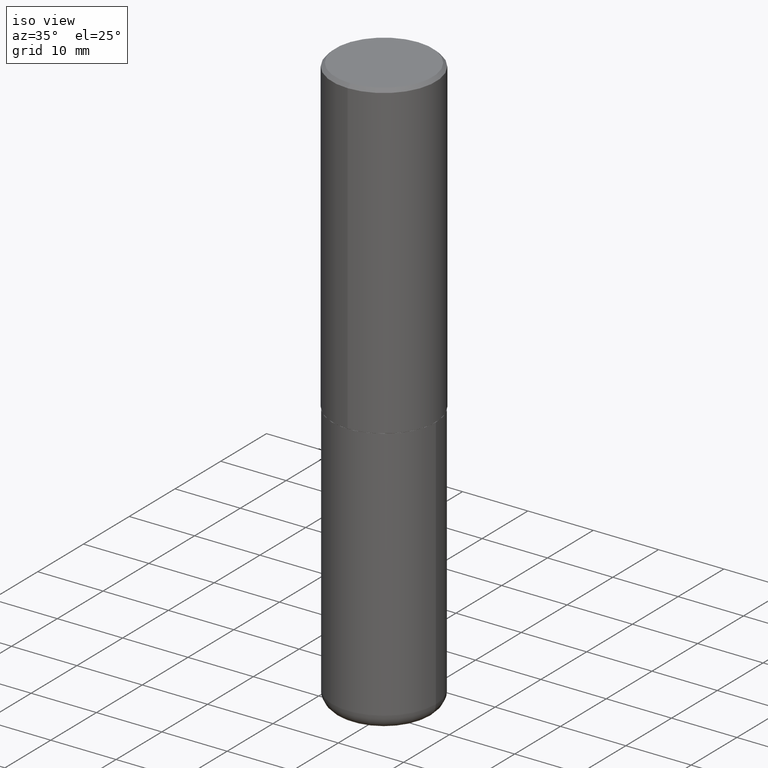
[diagram: clean part render]
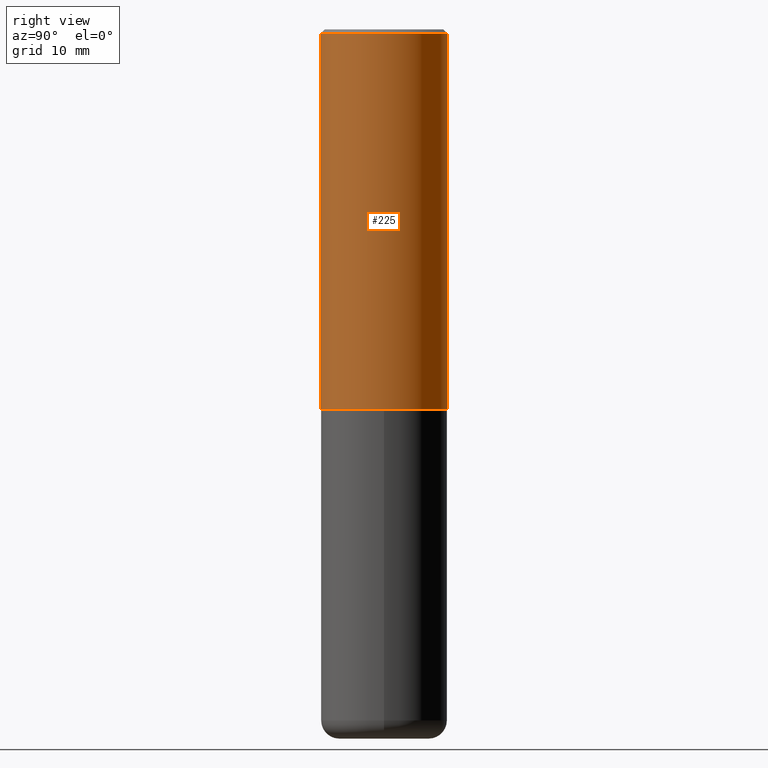
[diagram: tour spotlight — one face highlighted and labeled with its STEP entity id]
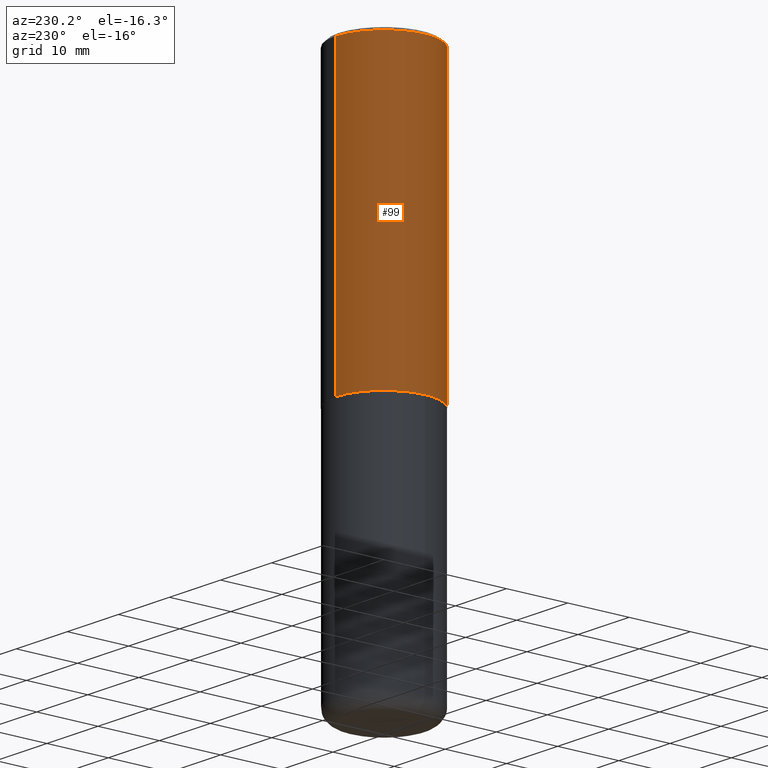
[diagram: tour spotlight — one face highlighted and labeled with its STEP entity id]
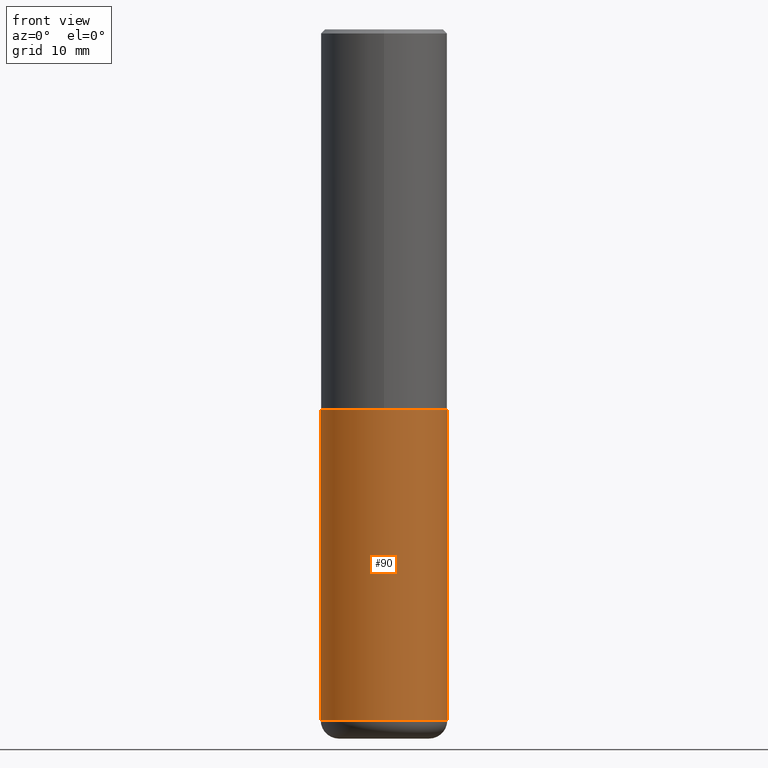
[diagram: tour spotlight — one face highlighted and labeled with its STEP entity id]
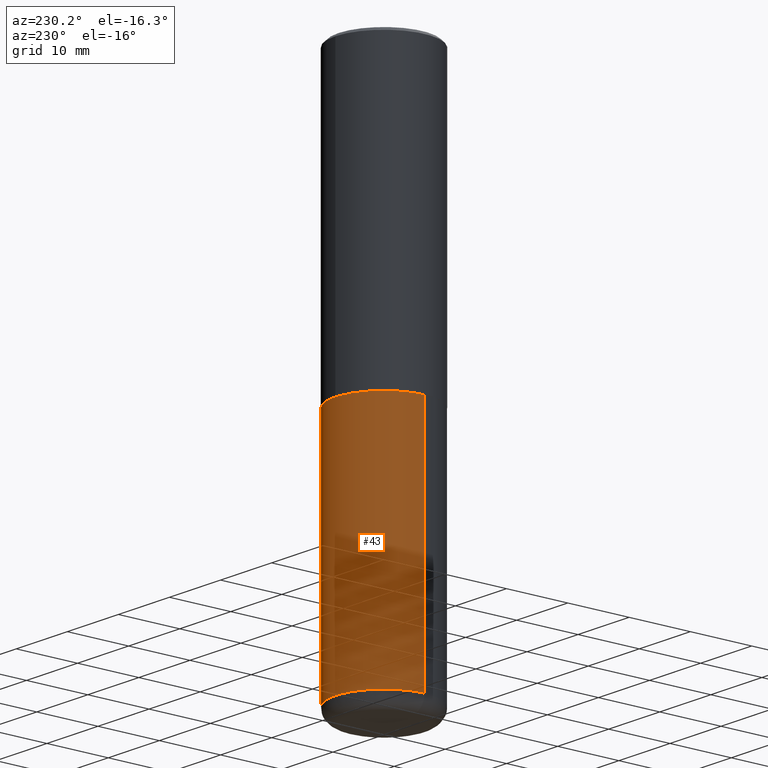
[diagram: tour spotlight — one face highlighted and labeled with its STEP entity id]
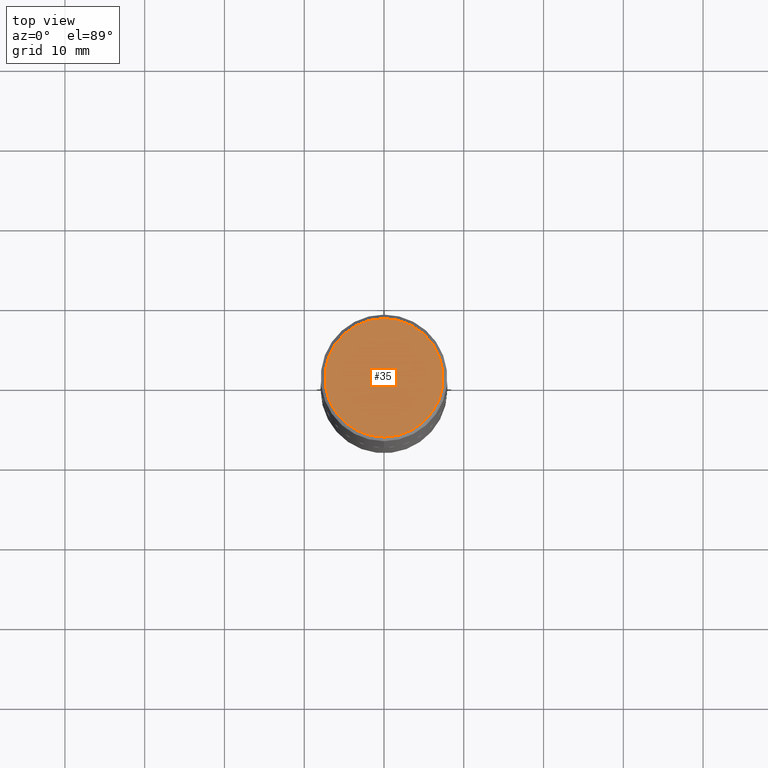
[diagram: tour spotlight — one face highlighted and labeled with its STEP entity id]
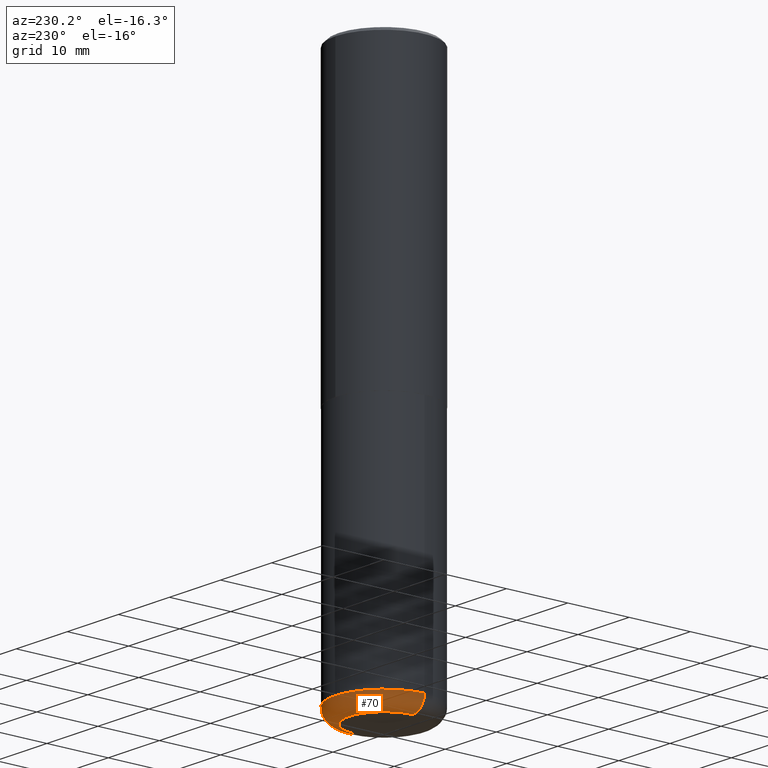
[diagram: tour spotlight — one face highlighted and labeled with its STEP entity id]
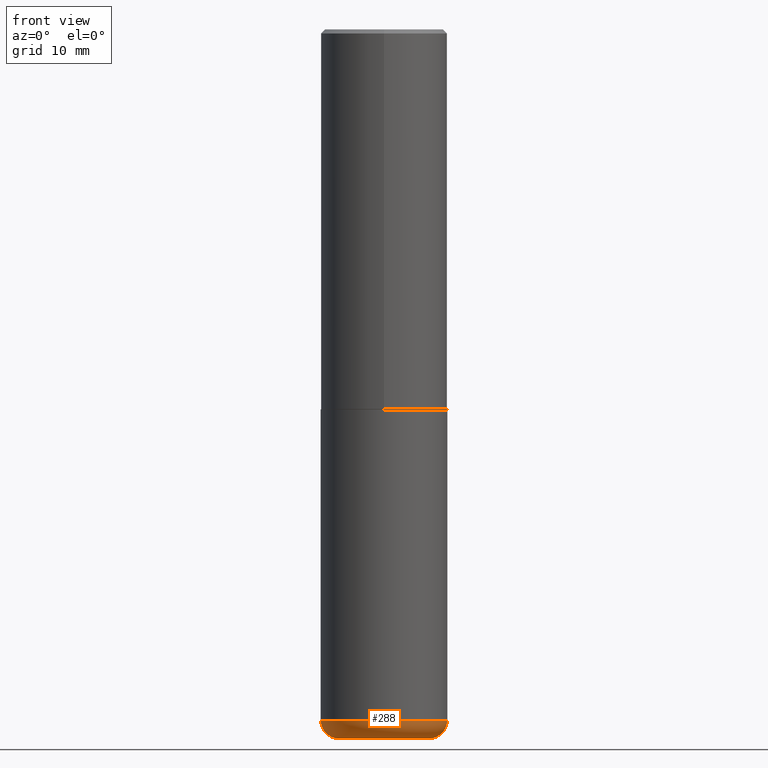
[diagram: tour spotlight — one face highlighted and labeled with its STEP entity id]
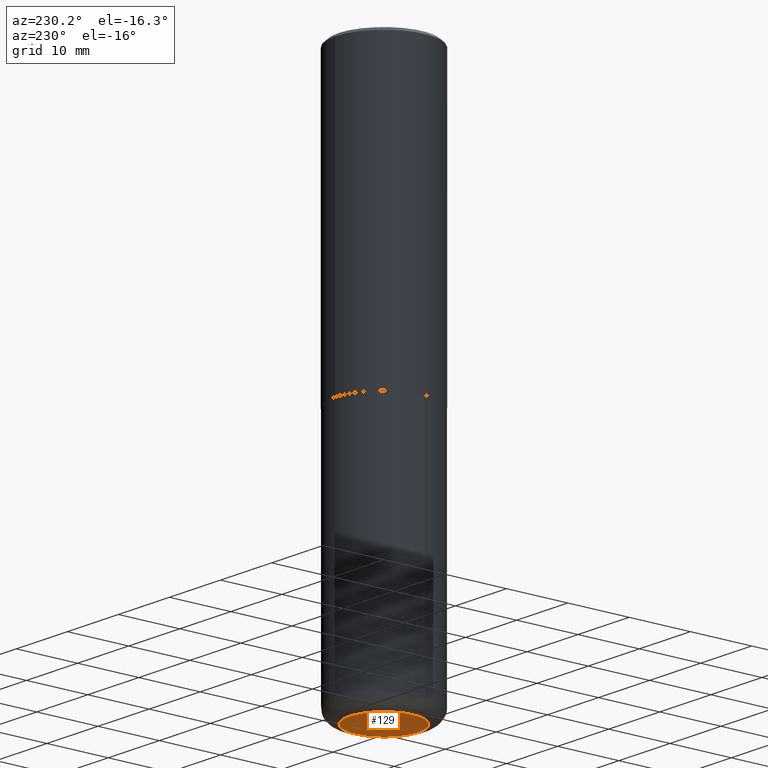
[diagram: tour spotlight — one face highlighted and labeled with its STEP entity id]
A machine part: a face-by-face anatomy tour. The part has 14 B-rep faces; the first image is the clean iso view, then the 8 largest visible faces are spotlighted one at a time (largest first), each with its STEP entity span.

Face 1 — right view, entity #225. In plain terms, the highlighted cylindrical surface (partial cylindrical patch) has radius 7.9375 mm, axis along (-0, 0, 1).
Definition (entity closure, byte-faithful):
#3 = VERTEX_POINT ( 'NONE', #355 ) ;
#10 = EDGE_CURVE ( 'NONE', #3, #155, #337, .T. ) ;
#17 = CARTESIAN_POINT ( 'NONE',  ( 4.582734173587975596E-29, -6.543142529923538471E-15, -1.873999999999999666 ) ) ;
#49 = LINE ( 'NONE', #167, #171 ) ;
#50 = LINE ( 'NONE', #177, #55 ) ;
#55 = VECTOR ( 'NONE', #343, 39.37007874015748143 ) ;
#61 = ORIENTED_EDGE ( 'NONE', *, *, #195, .T. ) ;
#84 = CARTESIAN_POINT ( 'NONE',  ( 2.220446049250337141E-15, 0.3124999999999936717, -1.874000000000000776 ) ) ;
#85 = VERTEX_POINT ( 'NONE', #110 ) ;
#94 = DIRECTION ( 'NONE',  ( -6.982962677686265133E-15, -1.000000000000000000, 3.496765431890256920E-15 ) ) ;
#98 = DIRECTION ( 'NONE',  ( -2.445429121445024938E-29, 3.491538169649700661E-15, 1.000000000000000000 ) ) ;
#110 = CARTESIAN_POINT ( 'NONE',  ( -2.182175836776913776E-15, -0.3125000000000067724, -1.873999999999998556 ) ) ;
#112 = CARTESIAN_POINT ( 'NONE',  ( 2.182175836776958741E-15, 0.3124999999999999445, -0.02000000000000116268 ) ) ;
#126 = CARTESIAN_POINT ( 'NONE',  ( 4.890858242890066482E-31, -6.983076339299424594E-17, -0.02000000000000006981 ) ) ;
#148 = CYLINDRICAL_SURFACE ( 'NONE', #166, 0.3125000000000001665 ) ;
#155 = VERTEX_POINT ( 'NONE', #112 ) ;
#160 = EDGE_LOOP ( 'NONE', ( #61, #252, #188, #410 ) ) ;
#166 = AXIS2_PLACEMENT_3D ( 'NONE', #213, #310, #371 ) ;
#167 = CARTESIAN_POINT ( 'NONE',  ( 2.220446049250313475E-15, 0.3125000000000001665, -1.091105678015531925E-15 ) ) ;
#171 = VECTOR ( 'NONE', #175, 39.37007874015748143 ) ;
#173 = EDGE_CURVE ( 'NONE', #255, #155, #49, .T. ) ;
#175 = DIRECTION ( 'NONE',  ( -2.445429121445024938E-29, 3.491538169649700267E-15, 1.000000000000000000 ) ) ;
#177 = CARTESIAN_POINT ( 'NONE',  ( -2.182175836776959136E-15, -0.3125000000000001665, 1.091105678015531925E-15 ) ) ;
#188 = ORIENTED_EDGE ( 'NONE', *, *, #10, .F. ) ;
#195 = EDGE_CURVE ( 'NONE', #85, #255, #390, .T. ) ;
#213 = CARTESIAN_POINT ( 'NONE',  ( 0.000000000000000000, 0.000000000000000000, 0.000000000000000000 ) ) ;
#225 = ADVANCED_FACE ( 'NONE', ( #303 ), #148, .T. ) ;
#231 = DIRECTION ( 'NONE',  ( -2.445429121445024938E-29, 3.491538169649700661E-15, 1.000000000000000000 ) ) ;
#252 = ORIENTED_EDGE ( 'NONE', *, *, #173, .T. ) ;
#255 = VERTEX_POINT ( 'NONE', #84 ) ;
#302 = EDGE_CURVE ( 'NONE', #85, #3, #50, .T. ) ;
#303 = FACE_OUTER_BOUND ( 'NONE', #160, .T. ) ;
#310 = DIRECTION ( 'NONE',  ( -2.445429121445024938E-29, 3.491538169649700661E-15, 1.000000000000000000 ) ) ;
#337 = CIRCLE ( 'NONE', #400, 0.3125000000000000000 ) ;
#343 = DIRECTION ( 'NONE',  ( -2.445429121445024938E-29, 3.491538169649700267E-15, 1.000000000000000000 ) ) ;
#355 = CARTESIAN_POINT ( 'NONE',  ( -2.143905624303602824E-15, -0.3125000000000000555, -0.01999999999999897693 ) ) ;
#362 = DIRECTION ( 'NONE',  ( -6.982962677686265922E-15, -1.000000000000000000, 3.496765431890254553E-15 ) ) ;
#371 = DIRECTION ( 'NONE',  ( -6.982962677686265133E-15, -1.000000000000000000, 3.491538169649700267E-15 ) ) ;
#390 = CIRCLE ( 'NONE', #408, 0.3125000000000002220 ) ;
#400 = AXIS2_PLACEMENT_3D ( 'NONE', #126, #98, #94 ) ;
#408 = AXIS2_PLACEMENT_3D ( 'NONE', #17, #231, #362 ) ;
#410 = ORIENTED_EDGE ( 'NONE', *, *, #302, .F. ) ;

Face 2 — auxiliary view, entity #99. In plain terms, the highlighted cylindrical surface (partial cylindrical patch) has radius 7.9375 mm, axis along (-0, 0, 1).
Definition (entity closure, byte-faithful):
#3 = VERTEX_POINT ( 'NONE', #355 ) ;
#49 = LINE ( 'NONE', #167, #171 ) ;
#50 = LINE ( 'NONE', #177, #55 ) ;
#54 = CARTESIAN_POINT ( 'NONE',  ( 4.582734173587975596E-29, -6.543142529923538471E-15, -1.873999999999999666 ) ) ;
#55 = VECTOR ( 'NONE', #343, 39.37007874015748143 ) ;
#74 = DIRECTION ( 'NONE',  ( -6.982962677686265133E-15, -1.000000000000000000, 3.491538169649700267E-15 ) ) ;
#84 = CARTESIAN_POINT ( 'NONE',  ( 2.220446049250337141E-15, 0.3124999999999936717, -1.874000000000000776 ) ) ;
#85 = VERTEX_POINT ( 'NONE', #110 ) ;
#99 = ADVANCED_FACE ( 'NONE', ( #297 ), #403, .T. ) ;
#101 = ORIENTED_EDGE ( 'NONE', *, *, #369, .F. ) ;
#110 = CARTESIAN_POINT ( 'NONE',  ( -2.182175836776913776E-15, -0.3125000000000067724, -1.873999999999998556 ) ) ;
#112 = CARTESIAN_POINT ( 'NONE',  ( 2.182175836776958741E-15, 0.3124999999999999445, -0.02000000000000116268 ) ) ;
#152 = DIRECTION ( 'NONE',  ( -2.445429121445024938E-29, 3.491538169649700661E-15, 1.000000000000000000 ) ) ;
#155 = VERTEX_POINT ( 'NONE', #112 ) ;
#167 = CARTESIAN_POINT ( 'NONE',  ( 2.220446049250313475E-15, 0.3125000000000001665, -1.091105678015531925E-15 ) ) ;
#171 = VECTOR ( 'NONE', #175, 39.37007874015748143 ) ;
#173 = EDGE_CURVE ( 'NONE', #255, #155, #49, .T. ) ;
#175 = DIRECTION ( 'NONE',  ( -2.445429121445024938E-29, 3.491538169649700267E-15, 1.000000000000000000 ) ) ;
#177 = CARTESIAN_POINT ( 'NONE',  ( -2.182175836776959136E-15, -0.3125000000000001665, 1.091105678015531925E-15 ) ) ;
#208 = AXIS2_PLACEMENT_3D ( 'NONE', #406, #216, #215 ) ;
#215 = DIRECTION ( 'NONE',  ( -6.982962677686265133E-15, -1.000000000000000000, 3.496765431890256920E-15 ) ) ;
#216 = DIRECTION ( 'NONE',  ( -2.445429121445024938E-29, 3.491538169649700661E-15, 1.000000000000000000 ) ) ;
#220 = CIRCLE ( 'NONE', #208, 0.3125000000000000000 ) ;
#222 = ORIENTED_EDGE ( 'NONE', *, *, #173, .F. ) ;
#228 = ORIENTED_EDGE ( 'NONE', *, *, #320, .T. ) ;
#255 = VERTEX_POINT ( 'NONE', #84 ) ;
#286 = CIRCLE ( 'NONE', #340, 0.3125000000000002220 ) ;
#297 = FACE_OUTER_BOUND ( 'NONE', #308, .T. ) ;
#302 = EDGE_CURVE ( 'NONE', #85, #3, #50, .T. ) ;
#308 = EDGE_LOOP ( 'NONE', ( #222, #228, #416, #101 ) ) ;
#317 = AXIS2_PLACEMENT_3D ( 'NONE', #399, #368, #74 ) ;
#320 = EDGE_CURVE ( 'NONE', #255, #85, #286, .T. ) ;
#340 = AXIS2_PLACEMENT_3D ( 'NONE', #54, #152, #379 ) ;
#343 = DIRECTION ( 'NONE',  ( -2.445429121445024938E-29, 3.491538169649700267E-15, 1.000000000000000000 ) ) ;
#355 = CARTESIAN_POINT ( 'NONE',  ( -2.143905624303602824E-15, -0.3125000000000000555, -0.01999999999999897693 ) ) ;
#368 = DIRECTION ( 'NONE',  ( -2.445429121445024938E-29, 3.491538169649700661E-15, 1.000000000000000000 ) ) ;
#369 = EDGE_CURVE ( 'NONE', #155, #3, #220, .T. ) ;
#379 = DIRECTION ( 'NONE',  ( -6.982962677686265922E-15, -1.000000000000000000, 3.496765431890254553E-15 ) ) ;
#399 = CARTESIAN_POINT ( 'NONE',  ( 0.000000000000000000, 0.000000000000000000, 0.000000000000000000 ) ) ;
#403 = CYLINDRICAL_SURFACE ( 'NONE', #317, 0.3125000000000001665 ) ;
#406 = CARTESIAN_POINT ( 'NONE',  ( 4.890858242890066482E-31, -6.983076339299424594E-17, -0.02000000000000006981 ) ) ;
#416 = ORIENTED_EDGE ( 'NONE', *, *, #302, .T. ) ;

Face 3 — front view, entity #90. In plain terms, the highlighted cylindrical surface (partial cylindrical patch) has radius 7.9375 mm, axis along (-0, 0, 1).
Definition (entity closure, byte-faithful):
#1 = EDGE_LOOP ( 'NONE', ( #190, #268, #158, #217 ) ) ;
#8 = LINE ( 'NONE', #206, #48 ) ;
#9 = DIRECTION ( 'NONE',  ( -2.445468806185136877E-29, 3.491481338843145188E-15, 1.000000000000000000 ) ) ;
#33 = VERTEX_POINT ( 'NONE', #165 ) ;
#44 = FACE_OUTER_BOUND ( 'NONE', #1, .T. ) ;
#48 = VECTOR ( 'NONE', #9, 39.37007874015748143 ) ;
#59 = VERTEX_POINT ( 'NONE', #367 ) ;
#67 = AXIS2_PLACEMENT_3D ( 'NONE', #69, #95, #226 ) ;
#69 = CARTESIAN_POINT ( 'NONE',  ( 4.585254011597130558E-29, -6.546527510330897918E-15, -1.874999999999999778 ) ) ;
#75 = DIRECTION ( 'NONE',  ( -2.445468806185136597E-29, 3.491481338843145583E-15, 1.000000000000000000 ) ) ;
#77 = EDGE_CURVE ( 'NONE', #185, #33, #8, .T. ) ;
#90 = ADVANCED_FACE ( 'NONE', ( #44 ), #260, .T. ) ;
#95 = DIRECTION ( 'NONE',  ( -2.445468806185136597E-29, 3.491481338843145583E-15, 1.000000000000000000 ) ) ;
#102 = AXIS2_PLACEMENT_3D ( 'NONE', #133, #75, #293 ) ;
#128 = VERTEX_POINT ( 'NONE', #333 ) ;
#130 = CIRCLE ( 'NONE', #193, 0.3125000000000000000 ) ;
#131 = CIRCLE ( 'NONE', #67, 0.3125000000000000000 ) ;
#133 = CARTESIAN_POINT ( 'NONE',  ( 0.000000000000000000, 0.000000000000000000, 0.000000000000000000 ) ) ;
#138 = CARTESIAN_POINT ( 'NONE',  ( 8.339048629091315302E-29, -1.190595136545512608E-14, -3.410000000000000142 ) ) ;
#151 = EDGE_CURVE ( 'NONE', #128, #185, #130, .T. ) ;
#158 = ORIENTED_EDGE ( 'NONE', *, *, #77, .T. ) ;
#165 = CARTESIAN_POINT ( 'NONE',  ( 0.3125000000000000000, -8.728703347107855476E-15, -1.874999999999999778 ) ) ;
#185 = VERTEX_POINT ( 'NONE', #397 ) ;
#190 = ORIENTED_EDGE ( 'NONE', *, *, #375, .F. ) ;
#193 = AXIS2_PLACEMENT_3D ( 'NONE', #138, #263, #402 ) ;
#206 = CARTESIAN_POINT ( 'NONE',  ( 0.3125000000000000000, -2.182175836776958347E-15, 1.523805242436230075E-29 ) ) ;
#217 = ORIENTED_EDGE ( 'NONE', *, *, #396, .F. ) ;
#226 = DIRECTION ( 'NONE',  ( 1.000000000000000000, -6.982962677686265133E-15, 0.000000000000000000 ) ) ;
#260 = CYLINDRICAL_SURFACE ( 'NONE', #102, 0.3125000000000000000 ) ;
#263 = DIRECTION ( 'NONE',  ( -2.445468806185136597E-29, 3.491481338843145583E-15, 1.000000000000000000 ) ) ;
#268 = ORIENTED_EDGE ( 'NONE', *, *, #151, .T. ) ;
#273 = CARTESIAN_POINT ( 'NONE',  ( -0.3125000000000000000, 2.220446049250313081E-15, -1.537167215704658232E-29 ) ) ;
#293 = DIRECTION ( 'NONE',  ( 1.000000000000000000, -6.982962677686266711E-15, 4.876176775795936353E-29 ) ) ;
#333 = CARTESIAN_POINT ( 'NONE',  ( -0.3125000000000001665, -9.685505316204812997E-15, -3.410000000000000142 ) ) ;
#342 = VECTOR ( 'NONE', #346, 39.37007874015748143 ) ;
#344 = LINE ( 'NONE', #273, #342 ) ;
#346 = DIRECTION ( 'NONE',  ( -2.445468806185136877E-29, 3.491481338843145188E-15, 1.000000000000000000 ) ) ;
#367 = CARTESIAN_POINT ( 'NONE',  ( -0.3125000000000000000, -7.005793388642699312E-15, -1.874999999999999778 ) ) ;
#375 = EDGE_CURVE ( 'NONE', #128, #59, #344, .T. ) ;
#396 = EDGE_CURVE ( 'NONE', #59, #33, #131, .T. ) ;
#397 = CARTESIAN_POINT ( 'NONE',  ( 0.3125000000000001665, -1.408812720223208758E-14, -3.410000000000000142 ) ) ;
#402 = DIRECTION ( 'NONE',  ( 1.000000000000000000, -6.982962677686269077E-15, 0.000000000000000000 ) ) ;

Face 4 — auxiliary view, entity #43. In plain terms, the highlighted cylindrical surface (partial cylindrical patch) has radius 7.9375 mm, axis along (-0, 0, 1).
Definition (entity closure, byte-faithful):
#8 = LINE ( 'NONE', #206, #48 ) ;
#9 = DIRECTION ( 'NONE',  ( -2.445468806185136877E-29, 3.491481338843145188E-15, 1.000000000000000000 ) ) ;
#33 = VERTEX_POINT ( 'NONE', #165 ) ;
#43 = ADVANCED_FACE ( 'NONE', ( #141 ), #107, .T. ) ;
#48 = VECTOR ( 'NONE', #9, 39.37007874015748143 ) ;
#52 = DIRECTION ( 'NONE',  ( -2.445468806185136597E-29, 3.491481338843145583E-15, 1.000000000000000000 ) ) ;
#59 = VERTEX_POINT ( 'NONE', #367 ) ;
#77 = EDGE_CURVE ( 'NONE', #185, #33, #8, .T. ) ;
#78 = CARTESIAN_POINT ( 'NONE',  ( 4.585254011597130558E-29, -6.546527510330897918E-15, -1.874999999999999778 ) ) ;
#79 = AXIS2_PLACEMENT_3D ( 'NONE', #181, #52, #409 ) ;
#82 = AXIS2_PLACEMENT_3D ( 'NONE', #330, #264, #137 ) ;
#103 = AXIS2_PLACEMENT_3D ( 'NONE', #78, #363, #370 ) ;
#107 = CYLINDRICAL_SURFACE ( 'NONE', #82, 0.3125000000000000000 ) ;
#124 = ORIENTED_EDGE ( 'NONE', *, *, #140, .F. ) ;
#128 = VERTEX_POINT ( 'NONE', #333 ) ;
#137 = DIRECTION ( 'NONE',  ( 1.000000000000000000, -6.982962677686266711E-15, 4.876176775795936353E-29 ) ) ;
#140 = EDGE_CURVE ( 'NONE', #33, #59, #292, .T. ) ;
#141 = FACE_OUTER_BOUND ( 'NONE', #150, .T. ) ;
#150 = EDGE_LOOP ( 'NONE', ( #316, #284, #124, #182 ) ) ;
#165 = CARTESIAN_POINT ( 'NONE',  ( 0.3125000000000000000, -8.728703347107855476E-15, -1.874999999999999778 ) ) ;
#181 = CARTESIAN_POINT ( 'NONE',  ( 8.339048629091315302E-29, -1.190595136545512608E-14, -3.410000000000000142 ) ) ;
#182 = ORIENTED_EDGE ( 'NONE', *, *, #77, .F. ) ;
#185 = VERTEX_POINT ( 'NONE', #397 ) ;
#206 = CARTESIAN_POINT ( 'NONE',  ( 0.3125000000000000000, -2.182175836776958347E-15, 1.523805242436230075E-29 ) ) ;
#209 = EDGE_CURVE ( 'NONE', #185, #128, #271, .T. ) ;
#264 = DIRECTION ( 'NONE',  ( -2.445468806185136597E-29, 3.491481338843145583E-15, 1.000000000000000000 ) ) ;
#271 = CIRCLE ( 'NONE', #79, 0.3125000000000000000 ) ;
#273 = CARTESIAN_POINT ( 'NONE',  ( -0.3125000000000000000, 2.220446049250313081E-15, -1.537167215704658232E-29 ) ) ;
#284 = ORIENTED_EDGE ( 'NONE', *, *, #375, .T. ) ;
#292 = CIRCLE ( 'NONE', #103, 0.3125000000000000000 ) ;
#316 = ORIENTED_EDGE ( 'NONE', *, *, #209, .T. ) ;
#330 = CARTESIAN_POINT ( 'NONE',  ( 0.000000000000000000, 0.000000000000000000, 0.000000000000000000 ) ) ;
#333 = CARTESIAN_POINT ( 'NONE',  ( -0.3125000000000001665, -9.685505316204812997E-15, -3.410000000000000142 ) ) ;
#342 = VECTOR ( 'NONE', #346, 39.37007874015748143 ) ;
#344 = LINE ( 'NONE', #273, #342 ) ;
#346 = DIRECTION ( 'NONE',  ( -2.445468806185136877E-29, 3.491481338843145188E-15, 1.000000000000000000 ) ) ;
#363 = DIRECTION ( 'NONE',  ( -2.445468806185136597E-29, 3.491481338843145583E-15, 1.000000000000000000 ) ) ;
#367 = CARTESIAN_POINT ( 'NONE',  ( -0.3125000000000000000, -7.005793388642699312E-15, -1.874999999999999778 ) ) ;
#370 = DIRECTION ( 'NONE',  ( 1.000000000000000000, -6.982962677686265133E-15, 0.000000000000000000 ) ) ;
#375 = EDGE_CURVE ( 'NONE', #128, #59, #344, .T. ) ;
#397 = CARTESIAN_POINT ( 'NONE',  ( 0.3125000000000001665, -1.408812720223208758E-14, -3.410000000000000142 ) ) ;
#409 = DIRECTION ( 'NONE',  ( 1.000000000000000000, -6.982962677686269077E-15, 0.000000000000000000 ) ) ;

Face 5 — top view, entity #35. In plain terms, the highlighted planar face has unit normal (0, -0, -1).
Definition (entity closure, byte-faithful):
#16 = CIRCLE ( 'NONE', #63, 0.2924999999999998712 ) ;
#19 = DIRECTION ( 'NONE',  ( -2.445429121445024938E-29, 3.491538169649700661E-15, 1.000000000000000000 ) ) ;
#27 = EDGE_LOOP ( 'NONE', ( #275, #388 ) ) ;
#31 = CARTESIAN_POINT ( 'NONE',  ( 2.112346210000095443E-15, 0.2924999999999998712, -8.761288669482055095E-16 ) ) ;
#32 = PLANE ( 'NONE',  #417 ) ;
#35 = ADVANCED_FACE ( 'NONE', ( #289 ), #32, .F. ) ;
#47 = CIRCLE ( 'NONE', #335, 0.2924999999999998712 ) ;
#63 = AXIS2_PLACEMENT_3D ( 'NONE', #307, #244, #147 ) ;
#134 = DIRECTION ( 'NONE',  ( 6.982962677686265922E-15, 1.000000000000000000, -3.491538169649700267E-15 ) ) ;
#147 = DIRECTION ( 'NONE',  ( -6.982962677686265133E-15, -1.000000000000000000, 3.491538169649699873E-15 ) ) ;
#239 = EDGE_CURVE ( 'NONE', #393, #304, #47, .T. ) ;
#244 = DIRECTION ( 'NONE',  ( -2.445429121445024938E-29, 3.491538169649700661E-15, 1.000000000000000000 ) ) ;
#267 = CARTESIAN_POINT ( 'NONE',  ( -3.549443718454578199E-45, 5.067829656287230541E-31, 1.451460476743313561E-16 ) ) ;
#275 = ORIENTED_EDGE ( 'NONE', *, *, #239, .T. ) ;
#280 = CARTESIAN_POINT ( 'NONE',  ( 2.042516583223231751E-15, 0.2924999999999998712, -9.487018907853712492E-16 ) ) ;
#289 = FACE_OUTER_BOUND ( 'NONE', #27, .T. ) ;
#301 = DIRECTION ( 'NONE',  ( 2.445429121445024938E-29, -3.491538169649700267E-15, -1.000000000000000000 ) ) ;
#304 = VERTEX_POINT ( 'NONE', #372 ) ;
#307 = CARTESIAN_POINT ( 'NONE',  ( -3.549443718454578199E-45, 5.067829656287230541E-31, 1.451460476743313561E-16 ) ) ;
#311 = EDGE_CURVE ( 'NONE', #304, #393, #16, .T. ) ;
#335 = AXIS2_PLACEMENT_3D ( 'NONE', #267, #19, #404 ) ;
#372 = CARTESIAN_POINT ( 'NONE',  ( -2.075300644325887099E-15, -0.2924999999999998712, 1.166420962296868074E-15 ) ) ;
#388 = ORIENTED_EDGE ( 'NONE', *, *, #311, .T. ) ;
#393 = VERTEX_POINT ( 'NONE', #31 ) ;
#404 = DIRECTION ( 'NONE',  ( -6.982962677686265133E-15, -1.000000000000000000, 3.491538169649699873E-15 ) ) ;
#417 = AXIS2_PLACEMENT_3D ( 'NONE', #280, #301, #134 ) ;

Face 6 — auxiliary view, entity #70. In plain terms, the highlighted toroidal blend (fillet) surface has major radius 5.6515 mm and minor (blend) radius 2.286 mm.
Definition (entity closure, byte-faithful):
#14 = DIRECTION ( 'NONE',  ( -6.982962677686266711E-15, -1.000000000000000000, 3.491481338843145583E-15 ) ) ;
#20 = AXIS2_PLACEMENT_3D ( 'NONE', #259, #14, #207 ) ;
#29 = ORIENTED_EDGE ( 'NONE', *, *, #146, .F. ) ;
#41 = DIRECTION ( 'NONE',  ( 1.000000000000000000, -6.982962677686264344E-15, 4.883557194083112340E-29 ) ) ;
#52 = DIRECTION ( 'NONE',  ( -2.445468806185136597E-29, 3.491481338843145583E-15, 1.000000000000000000 ) ) ;
#70 = ADVANCED_FACE ( 'NONE', ( #76 ), #359, .T. ) ;
#76 = FACE_OUTER_BOUND ( 'NONE', #373, .T. ) ;
#79 = AXIS2_PLACEMENT_3D ( 'NONE', #181, #52, #409 ) ;
#109 = DIRECTION ( 'NONE',  ( -2.445468806185136597E-29, 3.491481338843145583E-15, 1.000000000000000000 ) ) ;
#121 = DIRECTION ( 'NONE',  ( 7.105427357601001859E-15, 1.000000000000000000, -3.491481338843145583E-15 ) ) ;
#128 = VERTEX_POINT ( 'NONE', #333 ) ;
#136 = AXIS2_PLACEMENT_3D ( 'NONE', #405, #339, #376 ) ;
#146 = EDGE_CURVE ( 'NONE', #324, #185, #338, .T. ) ;
#163 = ORIENTED_EDGE ( 'NONE', *, *, #236, .T. ) ;
#174 = AXIS2_PLACEMENT_3D ( 'NONE', #294, #109, #41 ) ;
#181 = CARTESIAN_POINT ( 'NONE',  ( 8.339048629091315302E-29, -1.190595136545512608E-14, -3.410000000000000142 ) ) ;
#185 = VERTEX_POINT ( 'NONE', #397 ) ;
#207 = DIRECTION ( 'NONE',  ( 1.000000000000000000, -6.982962677686273021E-15, 0.000000000000000000 ) ) ;
#209 = EDGE_CURVE ( 'NONE', #185, #128, #271, .T. ) ;
#230 = EDGE_CURVE ( 'NONE', #395, #128, #347, .T. ) ;
#236 = EDGE_CURVE ( 'NONE', #324, #395, #274, .T. ) ;
#247 = CARTESIAN_POINT ( 'NONE',  ( -0.2225000000000000033, -1.032499377838890215E-14, -3.410000000000000142 ) ) ;
#259 = CARTESIAN_POINT ( 'NONE',  ( 0.2225000000000000033, -1.345966056124032105E-14, -3.410000000000000142 ) ) ;
#271 = CIRCLE ( 'NONE', #79, 0.3125000000000000000 ) ;
#274 = CIRCLE ( 'NONE', #136, 0.2225000000000000033 ) ;
#290 = AXIS2_PLACEMENT_3D ( 'NONE', #247, #121, #341 ) ;
#294 = CARTESIAN_POINT ( 'NONE',  ( 8.339048629091315302E-29, -1.190595136545512608E-14, -3.410000000000000142 ) ) ;
#313 = ORIENTED_EDGE ( 'NONE', *, *, #230, .T. ) ;
#324 = VERTEX_POINT ( 'NONE', #374 ) ;
#333 = CARTESIAN_POINT ( 'NONE',  ( -0.3125000000000001665, -9.685505316204812997E-15, -3.410000000000000142 ) ) ;
#338 = CIRCLE ( 'NONE', #20, 0.09000000000000020484 ) ;
#339 = DIRECTION ( 'NONE',  ( -2.445468806185136597E-29, 3.491481338843145583E-15, 1.000000000000000000 ) ) ;
#341 = DIRECTION ( 'NONE',  ( -1.000000000000000000, 7.105427357600996337E-15, 0.000000000000000000 ) ) ;
#347 = CIRCLE ( 'NONE', #290, 0.09000000000000020484 ) ;
#352 = CARTESIAN_POINT ( 'NONE',  ( -0.2225000000000000033, -1.016236620754479763E-14, -3.500000000000000444 ) ) ;
#357 = ORIENTED_EDGE ( 'NONE', *, *, #209, .F. ) ;
#359 = TOROIDAL_SURFACE ( 'NONE', #174, 0.2225000000000000033, 0.09000000000000020484 ) ;
#373 = EDGE_LOOP ( 'NONE', ( #163, #313, #357, #29 ) ) ;
#374 = CARTESIAN_POINT ( 'NONE',  ( 0.2225000000000000033, -1.377389388173620589E-14, -3.500000000000000444 ) ) ;
#376 = DIRECTION ( 'NONE',  ( 1.000000000000000000, -6.982962677686269077E-15, 0.000000000000000000 ) ) ;
#395 = VERTEX_POINT ( 'NONE', #352 ) ;
#397 = CARTESIAN_POINT ( 'NONE',  ( 0.3125000000000001665, -1.408812720223208758E-14, -3.410000000000000142 ) ) ;
#405 = CARTESIAN_POINT ( 'NONE',  ( 8.559140821647978089E-29, -1.222018468595101092E-14, -3.500000000000000444 ) ) ;
#409 = DIRECTION ( 'NONE',  ( 1.000000000000000000, -6.982962677686269077E-15, 0.000000000000000000 ) ) ;

Face 7 — front view, entity #288. In plain terms, the highlighted toroidal blend (fillet) surface has major radius 5.6515 mm and minor (blend) radius 2.286 mm.
Definition (entity closure, byte-faithful):
#13 = CIRCLE ( 'NONE', #248, 0.2225000000000000033 ) ;
#14 = DIRECTION ( 'NONE',  ( -6.982962677686266711E-15, -1.000000000000000000, 3.491481338843145583E-15 ) ) ;
#20 = AXIS2_PLACEMENT_3D ( 'NONE', #259, #14, #207 ) ;
#22 = FACE_OUTER_BOUND ( 'NONE', #68, .T. ) ;
#42 = DIRECTION ( 'NONE',  ( -2.445468806185136597E-29, 3.491481338843145583E-15, 1.000000000000000000 ) ) ;
#51 = EDGE_CURVE ( 'NONE', #395, #324, #13, .T. ) ;
#53 = TOROIDAL_SURFACE ( 'NONE', #318, 0.2225000000000000033, 0.09000000000000020484 ) ;
#68 = EDGE_LOOP ( 'NONE', ( #116, #384, #144, #178 ) ) ;
#115 = CARTESIAN_POINT ( 'NONE',  ( 8.339048629091315302E-29, -1.190595136545512608E-14, -3.410000000000000142 ) ) ;
#116 = ORIENTED_EDGE ( 'NONE', *, *, #230, .F. ) ;
#117 = DIRECTION ( 'NONE',  ( 1.000000000000000000, -6.982962677686264344E-15, 4.883557194083112340E-29 ) ) ;
#121 = DIRECTION ( 'NONE',  ( 7.105427357601001859E-15, 1.000000000000000000, -3.491481338843145583E-15 ) ) ;
#128 = VERTEX_POINT ( 'NONE', #333 ) ;
#130 = CIRCLE ( 'NONE', #193, 0.3125000000000000000 ) ;
#138 = CARTESIAN_POINT ( 'NONE',  ( 8.339048629091315302E-29, -1.190595136545512608E-14, -3.410000000000000142 ) ) ;
#144 = ORIENTED_EDGE ( 'NONE', *, *, #146, .T. ) ;
#146 = EDGE_CURVE ( 'NONE', #324, #185, #338, .T. ) ;
#151 = EDGE_CURVE ( 'NONE', #128, #185, #130, .T. ) ;
#178 = ORIENTED_EDGE ( 'NONE', *, *, #151, .F. ) ;
#185 = VERTEX_POINT ( 'NONE', #397 ) ;
#193 = AXIS2_PLACEMENT_3D ( 'NONE', #138, #263, #402 ) ;
#205 = CARTESIAN_POINT ( 'NONE',  ( 8.559140821647978089E-29, -1.222018468595101092E-14, -3.500000000000000444 ) ) ;
#207 = DIRECTION ( 'NONE',  ( 1.000000000000000000, -6.982962677686273021E-15, 0.000000000000000000 ) ) ;
#230 = EDGE_CURVE ( 'NONE', #395, #128, #347, .T. ) ;
#247 = CARTESIAN_POINT ( 'NONE',  ( -0.2225000000000000033, -1.032499377838890215E-14, -3.410000000000000142 ) ) ;
#248 = AXIS2_PLACEMENT_3D ( 'NONE', #205, #42, #329 ) ;
#259 = CARTESIAN_POINT ( 'NONE',  ( 0.2225000000000000033, -1.345966056124032105E-14, -3.410000000000000142 ) ) ;
#263 = DIRECTION ( 'NONE',  ( -2.445468806185136597E-29, 3.491481338843145583E-15, 1.000000000000000000 ) ) ;
#288 = ADVANCED_FACE ( 'NONE', ( #22 ), #53, .T. ) ;
#290 = AXIS2_PLACEMENT_3D ( 'NONE', #247, #121, #341 ) ;
#312 = DIRECTION ( 'NONE',  ( -2.445468806185136597E-29, 3.491481338843145583E-15, 1.000000000000000000 ) ) ;
#318 = AXIS2_PLACEMENT_3D ( 'NONE', #115, #312, #117 ) ;
#324 = VERTEX_POINT ( 'NONE', #374 ) ;
#329 = DIRECTION ( 'NONE',  ( 1.000000000000000000, -6.982962677686269077E-15, 0.000000000000000000 ) ) ;
#333 = CARTESIAN_POINT ( 'NONE',  ( -0.3125000000000001665, -9.685505316204812997E-15, -3.410000000000000142 ) ) ;
#338 = CIRCLE ( 'NONE', #20, 0.09000000000000020484 ) ;
#341 = DIRECTION ( 'NONE',  ( -1.000000000000000000, 7.105427357600996337E-15, 0.000000000000000000 ) ) ;
#347 = CIRCLE ( 'NONE', #290, 0.09000000000000020484 ) ;
#352 = CARTESIAN_POINT ( 'NONE',  ( -0.2225000000000000033, -1.016236620754479763E-14, -3.500000000000000444 ) ) ;
#374 = CARTESIAN_POINT ( 'NONE',  ( 0.2225000000000000033, -1.377389388173620589E-14, -3.500000000000000444 ) ) ;
#384 = ORIENTED_EDGE ( 'NONE', *, *, #51, .T. ) ;
#395 = VERTEX_POINT ( 'NONE', #352 ) ;
#397 = CARTESIAN_POINT ( 'NONE',  ( 0.3125000000000001665, -1.408812720223208758E-14, -3.410000000000000142 ) ) ;
#402 = DIRECTION ( 'NONE',  ( 1.000000000000000000, -6.982962677686269077E-15, 0.000000000000000000 ) ) ;

Face 8 — auxiliary view, entity #129. In plain terms, the highlighted planar face has unit normal (0, -0, -1).
Definition (entity closure, byte-faithful):
#13 = CIRCLE ( 'NONE', #248, 0.2225000000000000033 ) ;
#42 = DIRECTION ( 'NONE',  ( -2.445468806185136597E-29, 3.491481338843145583E-15, 1.000000000000000000 ) ) ;
#51 = EDGE_CURVE ( 'NONE', #395, #324, #13, .T. ) ;
#62 = AXIS2_PLACEMENT_3D ( 'NONE', #233, #300, #235 ) ;
#105 = ORIENTED_EDGE ( 'NONE', *, *, #51, .F. ) ;
#129 = ADVANCED_FACE ( 'NONE', ( #202 ), #401, .T. ) ;
#136 = AXIS2_PLACEMENT_3D ( 'NONE', #405, #339, #376 ) ;
#202 = FACE_OUTER_BOUND ( 'NONE', #254, .T. ) ;
#205 = CARTESIAN_POINT ( 'NONE',  ( 8.559140821647978089E-29, -1.222018468595101092E-14, -3.500000000000000444 ) ) ;
#233 = CARTESIAN_POINT ( 'NONE',  ( 2.557579110812578813E-29, -2.081476264354644977E-14, -3.500000000000000444 ) ) ;
#235 = DIRECTION ( 'NONE',  ( -1.000000000000000000, 6.982962677686265922E-15, -4.876176775795935793E-29 ) ) ;
#236 = EDGE_CURVE ( 'NONE', #324, #395, #274, .T. ) ;
#248 = AXIS2_PLACEMENT_3D ( 'NONE', #205, #42, #329 ) ;
#254 = EDGE_LOOP ( 'NONE', ( #319, #105 ) ) ;
#274 = CIRCLE ( 'NONE', #136, 0.2225000000000000033 ) ;
#300 = DIRECTION ( 'NONE',  ( 2.438088387897960049E-29, -3.491481338843145188E-15, -1.000000000000000000 ) ) ;
#319 = ORIENTED_EDGE ( 'NONE', *, *, #236, .F. ) ;
#324 = VERTEX_POINT ( 'NONE', #374 ) ;
#329 = DIRECTION ( 'NONE',  ( 1.000000000000000000, -6.982962677686269077E-15, 0.000000000000000000 ) ) ;
#339 = DIRECTION ( 'NONE',  ( -2.445468806185136597E-29, 3.491481338843145583E-15, 1.000000000000000000 ) ) ;
#352 = CARTESIAN_POINT ( 'NONE',  ( -0.2225000000000000033, -1.016236620754479763E-14, -3.500000000000000444 ) ) ;
#374 = CARTESIAN_POINT ( 'NONE',  ( 0.2225000000000000033, -1.377389388173620589E-14, -3.500000000000000444 ) ) ;
#376 = DIRECTION ( 'NONE',  ( 1.000000000000000000, -6.982962677686269077E-15, 0.000000000000000000 ) ) ;
#395 = VERTEX_POINT ( 'NONE', #352 ) ;
#401 = PLANE ( 'NONE',  #62 ) ;
#405 = CARTESIAN_POINT ( 'NONE',  ( 8.559140821647978089E-29, -1.222018468595101092E-14, -3.500000000000000444 ) ) ;